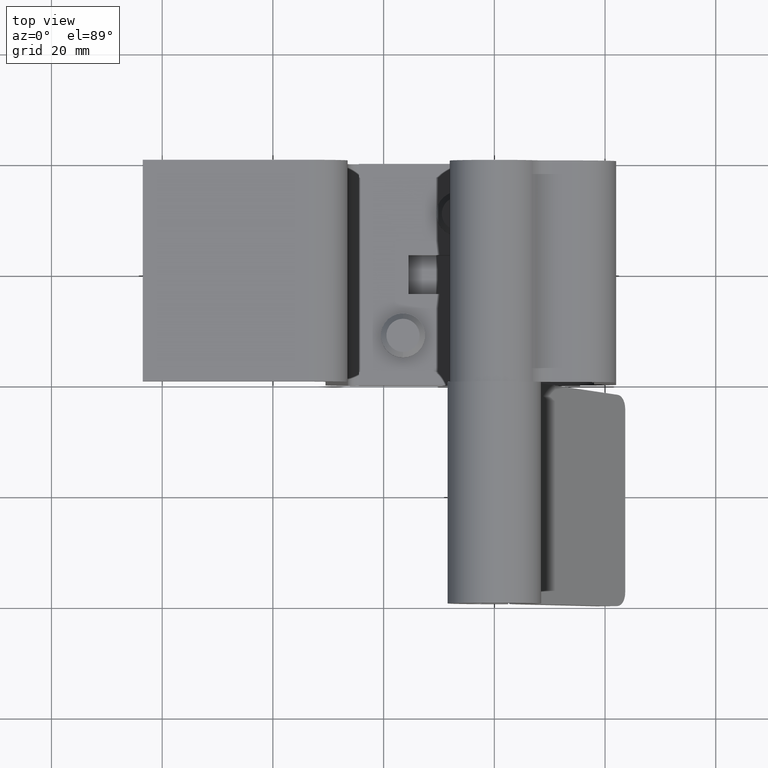
[diagram: clean part render]
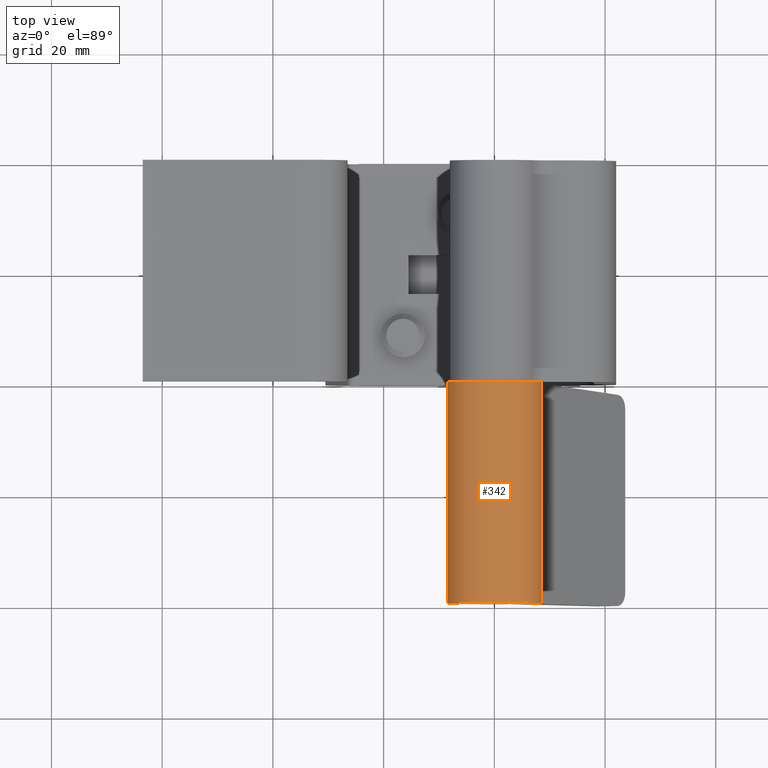
[diagram: same view with one face highlighted and labeled with its STEP entity id]
A machine part, top view. The second image highlights one B-rep face of the part: STEP entity #342.
In plain terms, the highlighted cylindrical surface (partial cylindrical patch) has radius 8.45 mm, axis along (-0, -1, -0).
Its self-contained STEP definition (entity closure, byte-faithful):
#342=ADVANCED_FACE('',(#826),#825,.T.);
#825=CYLINDRICAL_SURFACE('',#3796,8.45000000000E+00);
#826=FACE_OUTER_BOUND('',#3797,.T.);
#3793=CARTESIAN_POINT('',(-9.37792801557E-15,-6.08000000000E+01,-4.06825118162E-15));
#3794=DIRECTION('',(-4.50861923825E-16,-1.00000000000E+00,-1.95588999116E-16));
#3795=DIRECTION('',(6.28665649442E-01,-1.31336591490E-16,-7.77675704398E-01));
#3796=AXIS2_PLACEMENT_3D('',#3793,#3794,#3795);
#3797=EDGE_LOOP('',(#5863,#5864,#5865,#5866));
#5863=ORIENTED_EDGE('',*,*,#7308,.T.);
#5864=ORIENTED_EDGE('',*,*,#7300,.F.);
#5865=ORIENTED_EDGE('',*,*,#7309,.F.);
#5866=ORIENTED_EDGE('',*,*,#7293,.T.);
#7293=EDGE_CURVE('',#8283,#8276,#8284,.T.);
#7300=EDGE_CURVE('',#8323,#8330,#8331,.T.);
#7308=EDGE_CURVE('',#8276,#8330,#8381,.T.);
#7309=EDGE_CURVE('',#8283,#8323,#8387,.T.);
#8276=VERTEX_POINT('',#13212);
#8283=VERTEX_POINT('',#13218);
#8284=(BOUNDED_CURVE() B_SPLINE_CURVE(3,(#13219,#13220,#13221,#13222,#13223,#13224,#13225,#13226,#13227,#13228,#13229,#13230,#13231,#13232,#13233,#13234,#13235,#13236,#13237,#13238,#13239,#13240,#13241,#13242,#13243),.UNSPECIFIED.,.F.,.F.) B_SPLINE_CURVE_WITH_KNOTS((4,1,1,1,1,1,1,1,1,1,1,1,1,1,1,1,1,1,1,1,1,1,4),(0.00000000000E+00,6.25000000000E-02,1.25000000000E-01,1.87500000000E-01,2.50000000000E-01,3.12500000000E-01,3.75000000000E-01,4.06250000000E-01,4.37500000000E-01,4.68750000000E-01,4.84375000000E-01,5.00000000000E-01,5.15625000000E-01,5.31250000000E-01,5.62500000000E-01,5.93750000000E-01,6.25000000000E-01,6.87500000000E-01,7.50000000000E-01,8.12500000000E-01,8.75000000000E-01,9.37500000000E-01,1.00000000000E+00),.UNSPECIFIED.) CURVE() GEOMETRIC_REPRESENTATION_ITEM() RATIONAL_B_SPLINE_CURVE((1.00000000000E+00,1.00000000000E+00,1.00000000000E+00,1.00000000000E+00,1.00000000000E+00,1.00000000000E+00,1.00000000000E+00,1.00000000000E+00,1.00000000000E+00,1.00000000000E+00,1.00000000000E+00,1.00000000000E+00,1.00000000000E+00,1.00000000000E+00,1.00000000000E+00,1.00000000000E+00,1.00000000000E+00,1.00000000000E+00,1.00000000000E+00,1.00000000000E+00,1.00000000000E+00,1.00000000000E+00,1.00000000000E+00,1.00000000000E+00,1.00000000000E+00)) REPRESENTATION_ITEM('') );
#8323=VERTEX_POINT('',#13298);
#8330=VERTEX_POINT('',#13302);
#8331=(BOUNDED_CURVE() B_SPLINE_CURVE(3,(#13303,#13304,#13305,#13306,#13307,#13308,#13309,#13310,#13311,#13312,#13313,#13314,#13315,#13316,#13317,#13318,#13319,#13320,#13321,#13322,#13323,#13324,#13325,#13326,#13327),.UNSPECIFIED.,.F.,.F.) B_SPLINE_CURVE_WITH_KNOTS((4,1,1,1,1,1,1,1,1,1,1,1,1,1,1,1,1,1,1,1,1,1,4),(0.00000000000E+00,6.25000000000E-02,1.25000000000E-01,1.87500000000E-01,2.50000000000E-01,3.12500000000E-01,3.75000000000E-01,4.06250000000E-01,4.37500000000E-01,4.68750000000E-01,4.84375000000E-01,5.00000000000E-01,5.15625000000E-01,5.31250000000E-01,5.62500000000E-01,5.93750000000E-01,6.25000000000E-01,6.87500000000E-01,7.50000000000E-01,8.12500000000E-01,8.75000000000E-01,9.37500000000E-01,1.00000000000E+00),.UNSPECIFIED.) CURVE() GEOMETRIC_REPRESENTATION_ITEM() RATIONAL_B_SPLINE_CURVE((1.00000000000E+00,1.00000000000E+00,1.00000000000E+00,1.00000000000E+00,1.00000000000E+00,1.00000000000E+00,1.00000000000E+00,1.00000000000E+00,1.00000000000E+00,1.00000000000E+00,1.00000000000E+00,1.00000000000E+00,1.00000000000E+00,1.00000000000E+00,1.00000000000E+00,1.00000000000E+00,1.00000000000E+00,1.00000000000E+00,1.00000000000E+00,1.00000000000E+00,1.00000000000E+00,1.00000000000E+00,1.00000000000E+00,1.00000000000E+00,1.00000000000E+00)) REPRESENTATION_ITEM('') );
#8381=LINE('',#13357,#13358);
#8387=LINE('',#13360,#13361);
#13212=CARTESIAN_POINT('',(7.48098256481E+00,-6.00000000000E+01,-3.92904566848E+00));
#13218=CARTESIAN_POINT('',(2.49231947819E+00,-6.00000000000E+01,-8.07408469231E+00));
#13219=CARTESIAN_POINT('',(2.49231947819E+00,-6.00000000000E+01,-8.07408469231E+00));
#13220=CARTESIAN_POINT('',(1.83248603122E+00,-6.00000000000E+01,-8.27776298093E+00));
#13221=CARTESIAN_POINT('',(3.25369526864E-01,-6.00000000000E+01,-8.56837292878E+00));
#13222=CARTESIAN_POINT('',(-2.44279022758E+00,-6.00000000000E+01,-8.27346176790E+00));
#13223=CARTESIAN_POINT('',(-5.34804804990E+00,-6.00000000000E+01,-6.83141169307E+00));
#13224=CARTESIAN_POINT('',(-7.64758553825E+00,-6.00000000000E+01,-4.14177612918E+00));
#13225=CARTESIAN_POINT('',(-8.64349563977E+00,-6.00000000000E+01,-7.45747181602E-01));
#13226=CARTESIAN_POINT('',(-8.32778746956E+00,-6.00000000000E+01,1.93714352699E+00));
#13227=CARTESIAN_POINT('',(-7.62998597166E+00,-6.00000000000E+01,3.71659363189E+00));
#13228=CARTESIAN_POINT('',(-6.95679046724E+00,-6.00000000000E+01,4.85108953879E+00));
#13229=CARTESIAN_POINT('',(-6.32410900801E+00,-6.00000000000E+01,5.62675647404E+00));
#13230=CARTESIAN_POINT('',(-5.79760405653E+00,-6.00000000000E+01,6.15531583399E+00));
#13231=CARTESIAN_POINT('',(-5.40356475073E+00,-6.00000000000E+01,6.50333177882E+00));
#13232=CARTESIAN_POINT('',(-4.98926221961E+00,-6.00000000000E+01,6.82696040097E+00));
#13233=CARTESIAN_POINT('',(-4.37320758959E+00,-6.00000000000E+01,7.24774437613E+00));
#13234=CARTESIAN_POINT('',(-3.49477807599E+00,-6.00000000000E+01,7.72764708808E+00));
#13235=CARTESIAN_POINT('',(-2.25616944146E+00,-6.00000000000E+01,8.18165347614E+00));
#13236=CARTESIAN_POINT('',(-3.79010881234E-01,-6.00000000000E+01,8.54171645128E+00));
#13237=CARTESIAN_POINT('',(2.31631784028E+00,-6.00000000000E+01,8.36067146804E+00));
#13238=CARTESIAN_POINT('',(5.47247729679E+00,-6.00000000000E+01,6.75957589683E+00));
#13239=CARTESIAN_POINT('',(7.69541492745E+00,-6.00000000000E+01,4.00629414280E+00));
#13240=CARTESIAN_POINT('',(8.58092667203E+00,-6.00000000000E+01,8.86053706118E-01));
#13241=CARTESIAN_POINT('',(8.36381820320E+00,-6.00000000000E+01,-1.88929220596E+00));
#13242=CARTESIAN_POINT('',(7.80207354237E+00,-6.00000000000E+01,-3.31768194112E+00));
#13243=CARTESIAN_POINT('',(7.48098256481E+00,-6.00000000000E+01,-3.92904566848E+00));
#13298=CARTESIAN_POINT('',(2.49231947819E+00,-2.00000000000E+01,-8.07408469231E+00));
#13302=CARTESIAN_POINT('',(7.48098256481E+00,-2.00000000000E+01,-3.92904566848E+00));
#13303=CARTESIAN_POINT('',(2.49231947819E+00,-2.00000000000E+01,-8.07408469231E+00));
#13304=CARTESIAN_POINT('',(1.83248603122E+00,-2.00000000000E+01,-8.27776298093E+00));
#13305=CARTESIAN_POINT('',(3.25369526864E-01,-2.00000000000E+01,-8.56837292878E+00));
#13306=CARTESIAN_POINT('',(-2.44279022758E+00,-2.00000000000E+01,-8.27346176790E+00));
#13307=CARTESIAN_POINT('',(-5.34804804990E+00,-2.00000000000E+01,-6.83141169307E+00));
#13308=CARTESIAN_POINT('',(-7.64758553825E+00,-2.00000000000E+01,-4.14177612918E+00));
#13309=CARTESIAN_POINT('',(-8.64349563977E+00,-2.00000000000E+01,-7.45747181602E-01));
#13310=CARTESIAN_POINT('',(-8.32778746956E+00,-2.00000000000E+01,1.93714352699E+00));
#13311=CARTESIAN_POINT('',(-7.62998597166E+00,-2.00000000000E+01,3.71659363189E+00));
#13312=CARTESIAN_POINT('',(-6.95679046724E+00,-2.00000000000E+01,4.85108953879E+00));
#13313=CARTESIAN_POINT('',(-6.32410900801E+00,-2.00000000000E+01,5.62675647404E+00));
#13314=CARTESIAN_POINT('',(-5.79760405653E+00,-2.00000000000E+01,6.15531583399E+00));
#13315=CARTESIAN_POINT('',(-5.40356475073E+00,-2.00000000000E+01,6.50333177882E+00));
#13316=CARTESIAN_POINT('',(-4.98926221961E+00,-2.00000000000E+01,6.82696040097E+00));
#13317=CARTESIAN_POINT('',(-4.37320758959E+00,-2.00000000000E+01,7.24774437613E+00));
#13318=CARTESIAN_POINT('',(-3.49477807599E+00,-2.00000000000E+01,7.72764708808E+00));
#13319=CARTESIAN_POINT('',(-2.25616944146E+00,-2.00000000000E+01,8.18165347614E+00));
#13320=CARTESIAN_POINT('',(-3.79010881234E-01,-2.00000000000E+01,8.54171645128E+00));
#13321=CARTESIAN_POINT('',(2.31631784028E+00,-2.00000000000E+01,8.36067146804E+00));
#13322=CARTESIAN_POINT('',(5.47247729679E+00,-2.00000000000E+01,6.75957589683E+00));
#13323=CARTESIAN_POINT('',(7.69541492745E+00,-2.00000000000E+01,4.00629414280E+00));
#13324=CARTESIAN_POINT('',(8.58092667203E+00,-2.00000000000E+01,8.86053706118E-01));
#13325=CARTESIAN_POINT('',(8.36381820320E+00,-2.00000000000E+01,-1.88929220596E+00));
#13326=CARTESIAN_POINT('',(7.80207354237E+00,-2.00000000000E+01,-3.31768194112E+00));
#13327=CARTESIAN_POINT('',(7.48098256481E+00,-2.00000000000E+01,-3.92904566848E+00));
#13357=CARTESIAN_POINT('',(7.48098256481E+00,-6.00000000000E+01,-3.92904566848E+00));
#13358=VECTOR('',#13359,4.00000000000E+01);
#13359=DIRECTION('',(0.00000000000E+00,1.00000000000E+00,0.00000000000E+00));
#13360=CARTESIAN_POINT('',(2.49231947819E+00,-6.00000000000E+01,-8.07408469231E+00));
#13361=VECTOR('',#13362,4.00000000000E+01);
#13362=DIRECTION('',(0.00000000000E+00,1.00000000000E+00,0.00000000000E+00));